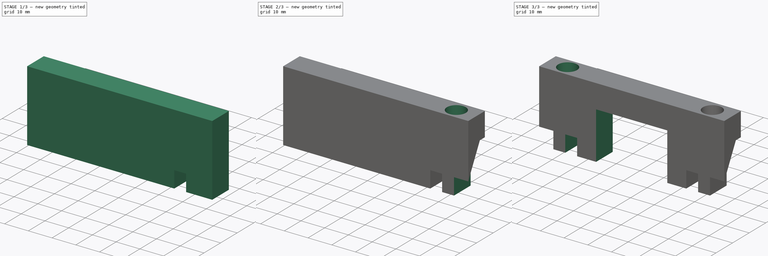
[diagram: build sequence overview — one tinted view per stage of 3, left to right]
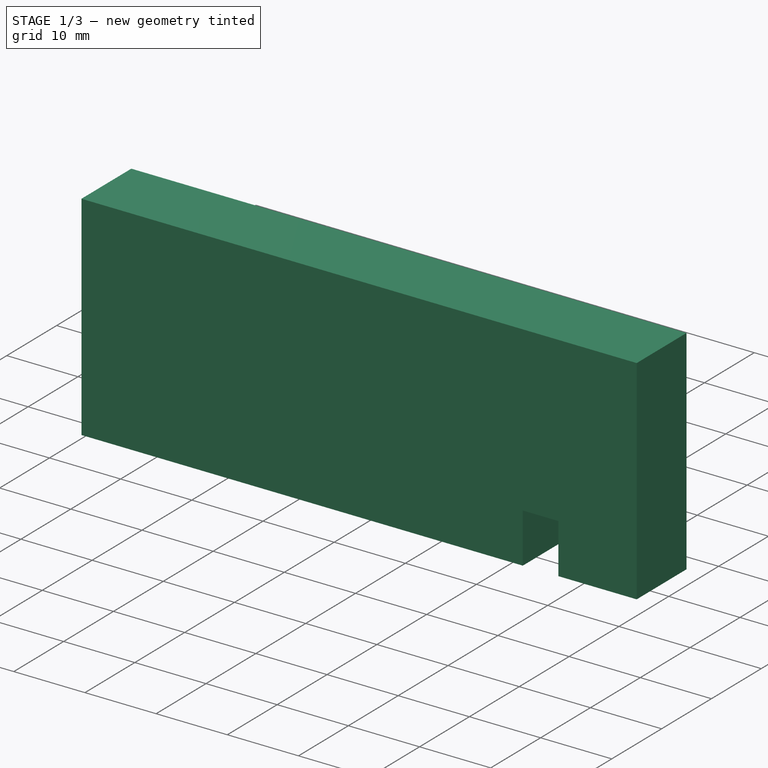
[diagram: stage 1 of 3 — iso view after this stage's code; geometry added in this stage tinted green]
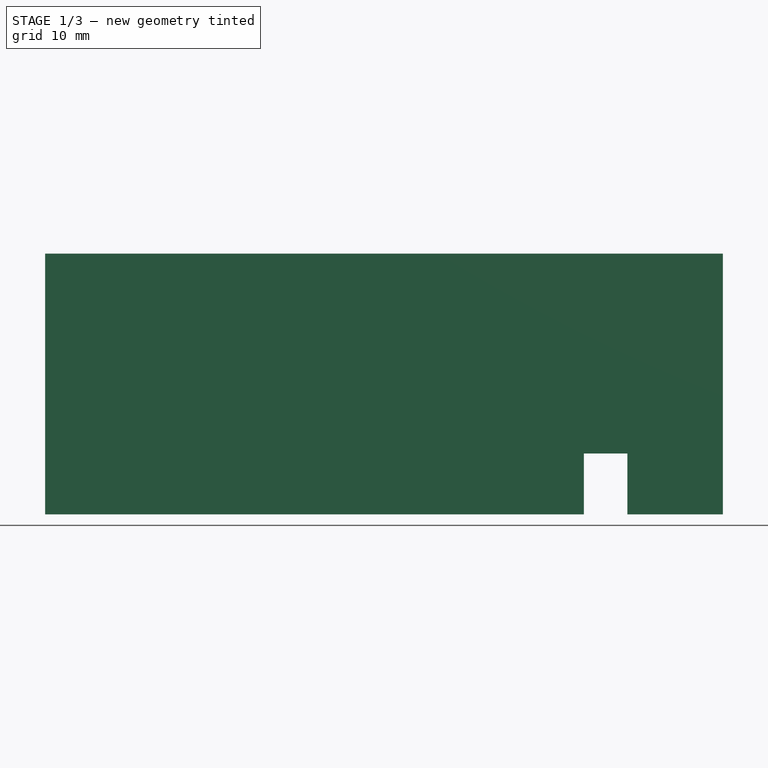
[diagram: stage 1 of 3 — front view after this stage's code; geometry added in this stage tinted green]
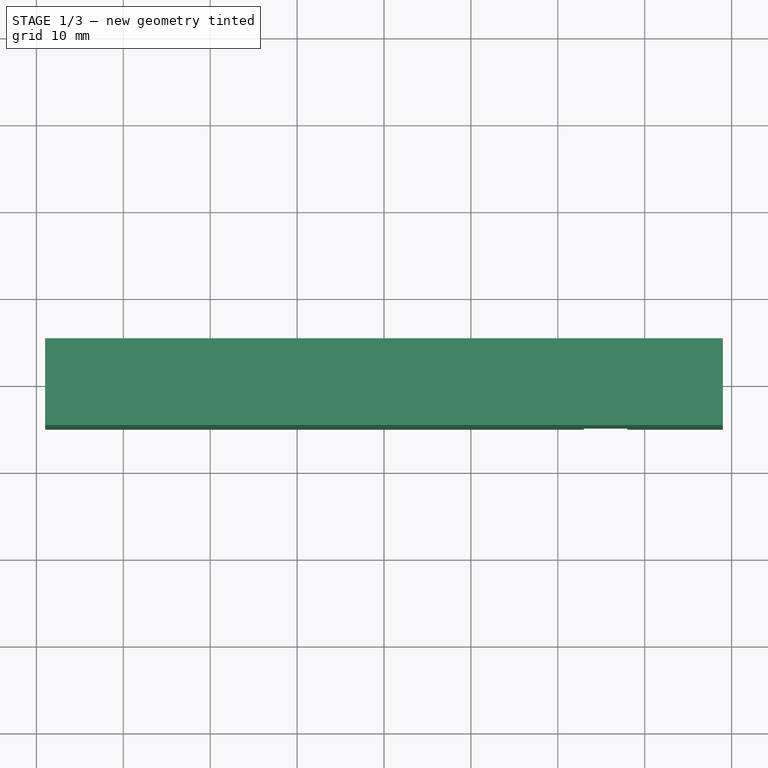
[diagram: stage 1 of 3 — top view after this stage's code; geometry added in this stage tinted green]
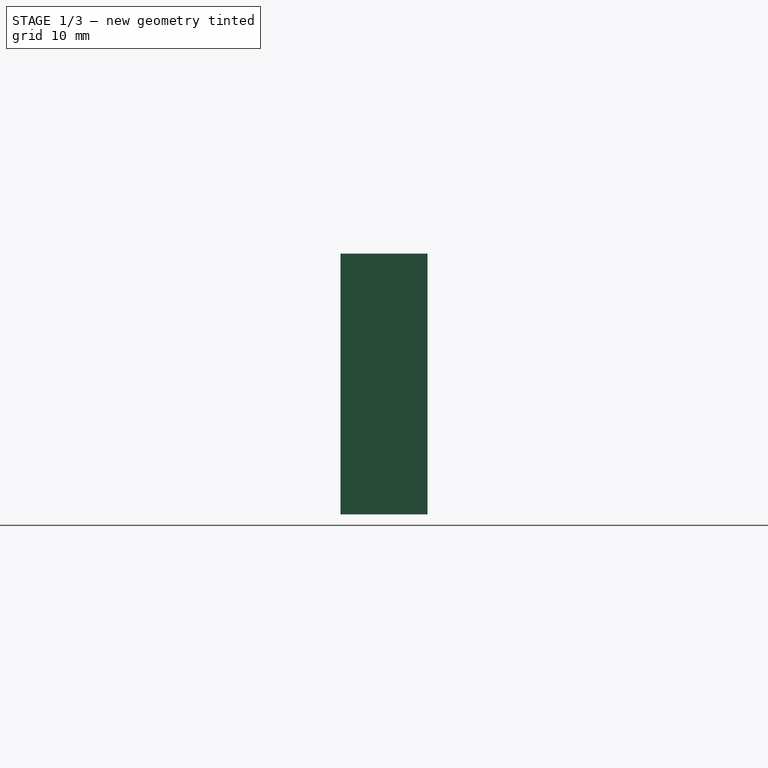
[diagram: stage 1 of 3 — right view after this stage's code; geometry added in this stage tinted green]
FCSTD DOCUMENT  (FreeCAD 0.20R29603 (Git))
Label: M365_battery_back_fix
License: All rights reserved
LicenseURL: http://en.wikipedia.org/wiki/All_rights_reserved
objects: Sketcher::SketchObject×6, PartDesign::Pocket×5, PartDesign::Plane×2, PartDesign::Pad×1, PartDesign::Mirrored×1, PartDesign::Body×1
note: 22 computed .brp shape members not serialized (recipe doc carries the construction recipe); baked Part::Feature solids carry a one-line shape summary decoded from their .brp

FEATURE [Sketcher::SketchObject] Sketch
  FullyConstrained = true
  MapMode = 5
  Support = -> [XY_Plane]
  sketch-geometry (5):
    g0: LineSegment StartX=-39 StartY=-5 StartZ=0 EndX=-39 EndY=5 EndZ=0
    g1: LineSegment StartX=-39 StartY=5 StartZ=0 EndX=39 EndY=5 EndZ=0
    g2: LineSegment StartX=39 StartY=5 StartZ=0 EndX=39 EndY=-5 EndZ=0
    g3: LineSegment StartX=39 StartY=-5 StartZ=0 EndX=-39 EndY=-5 EndZ=0
    g4: GeomPoint X=0 Y=0 Z=0
  constraints (12):
    c: Coincident(g0,g1)
    c: Coincident(g1,g2)
    c: Coincident(g2,g3)
    c: Coincident(g3,g0)
    c: Horizontal(g1)
    c: Horizontal(g3)
    c: Vertical(g0)
    c: Vertical(g2)
    c: Symmetric(g1,g0,g4)
    c: Coincident(g4,g-1)
    c: DistanceY(g2,g2) = 10
    c: DistanceX(g1,g1) = 78
FEATURE [PartDesign::Pad] Pad
  Direction = (0,0,1)
  Length = 30
  Length2 = 10
  Profile = -> Sketch
  ReferenceAxis = -> Sketch [N_Axis]
  Type = 0
FEATURE [PartDesign::Plane] DatumPlane
  AttachmentOffset = pos=(0,0,23) rot=(0,0,1;0rad)
  Length = 60.4881
  MapMode = 5
  Placement = pos=(23,-5.1e-15,5.1e-15) rot=(0.57735,0.57735,0.57735;2.0944rad)
  ResizeMode = 0
  Support = -> [YZ_Plane]
  Width = 65.4881
FEATURE [Sketcher::SketchObject] Sketch001
  ExternalGeometry = -> [Pad]
  FullyConstrained = true
  MapMode = 5
  Placement = pos=(23,-5.1e-15,5.1e-15) rot=(0.57735,0.57735,0.57735;2.0944rad)
  Support = -> [DatumPlane]
  sketch-geometry (5):
    g0: LineSegment StartX=-5 StartY=-7.4e-15 StartZ=0 EndX=5 EndY=-6.3e-15 EndZ=0
    g1: LineSegment StartX=5 StartY=-6.3e-15 StartZ=0 EndX=5 EndY=20 EndZ=0
    g2: LineSegment StartX=-5 StartY=-7.4e-15 StartZ=0 EndX=-5 EndY=7 EndZ=0
    g3: LineSegment StartX=5 StartY=20 StartZ=0 EndX=2 EndY=20 EndZ=0
    g4: LineSegment StartX=-5 StartY=7 StartZ=0 EndX=2 EndY=20 EndZ=0
  constraints (13):
    c: Coincident(g0,g-5)
    c: Coincident(g0,g-6)
    c: Coincident(g1,g0)
    c: PointOnObject(g1,g-6)
    c: DistanceY(g1,g1) = 20
    c: Coincident(g2,g0)
    c: PointOnObject(g2,g-3)
    c: DistanceY(g2,g2) = 7
    c: Coincident(g3,g1)
    c: Horizontal(g3)
    c: DistanceX(g3,g3) = 3
    c: Coincident(g4,g2)
    c: Coincident(g4,g3)
FEATURE [PartDesign::Pocket] Pocket
  BaseFeature = -> Pad
  Direction = (-1,1e-16,-1e-16)
  Length = 5
  Length2 = 5
  Profile = -> Sketch001
  ReferenceAxis = -> Sketch001 [N_Axis]
  Reversed = true
  Type = 0
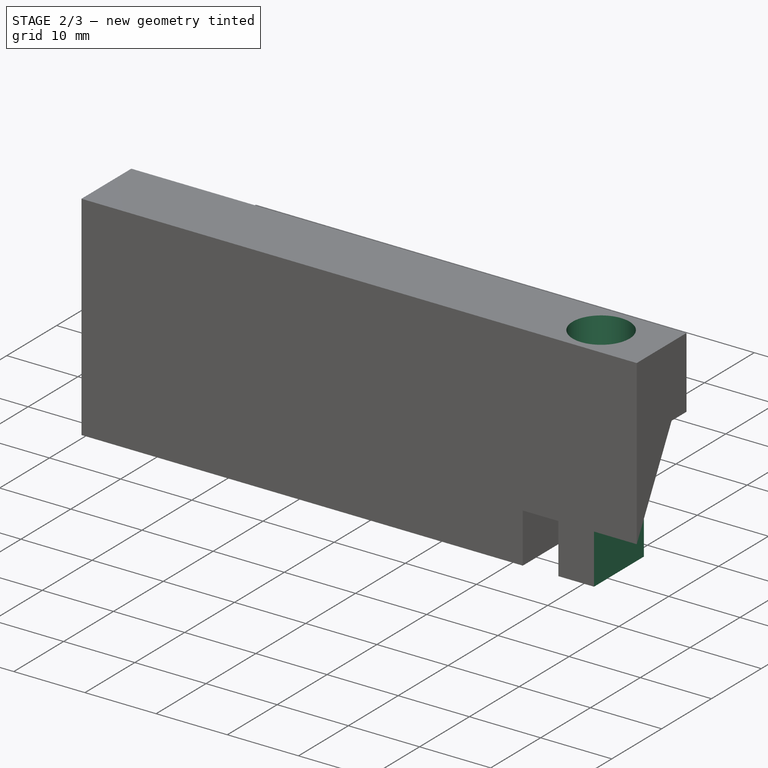
[diagram: stage 2 of 3 — iso view after this stage's code; geometry added in this stage tinted green]
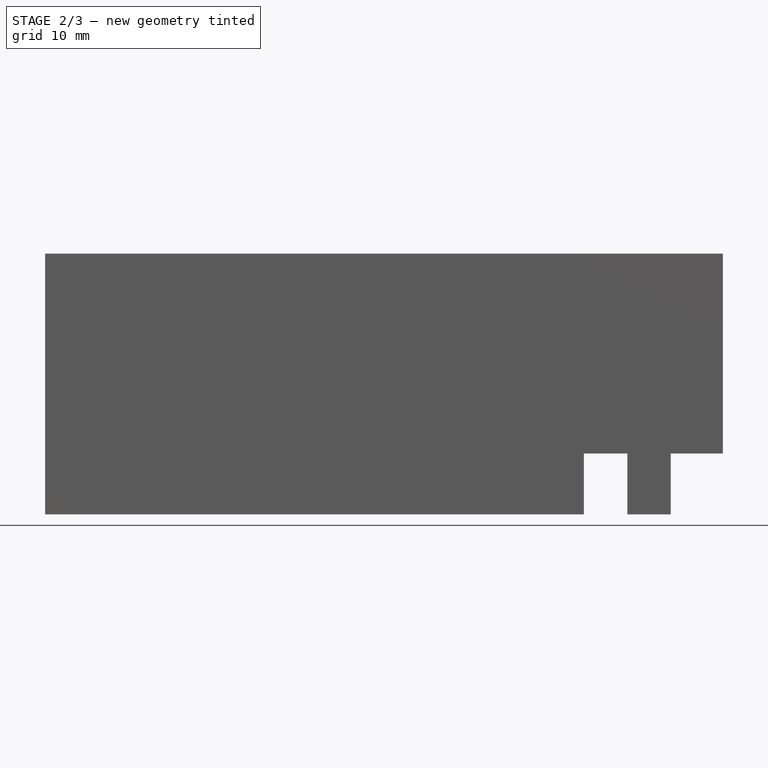
[diagram: stage 2 of 3 — front view after this stage's code; geometry added in this stage tinted green]
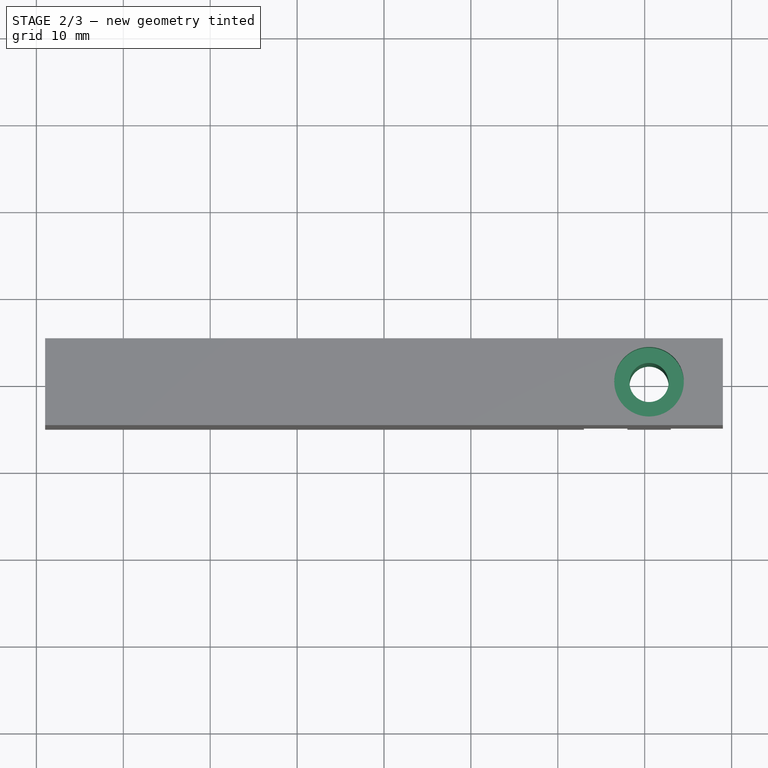
[diagram: stage 2 of 3 — top view after this stage's code; geometry added in this stage tinted green]
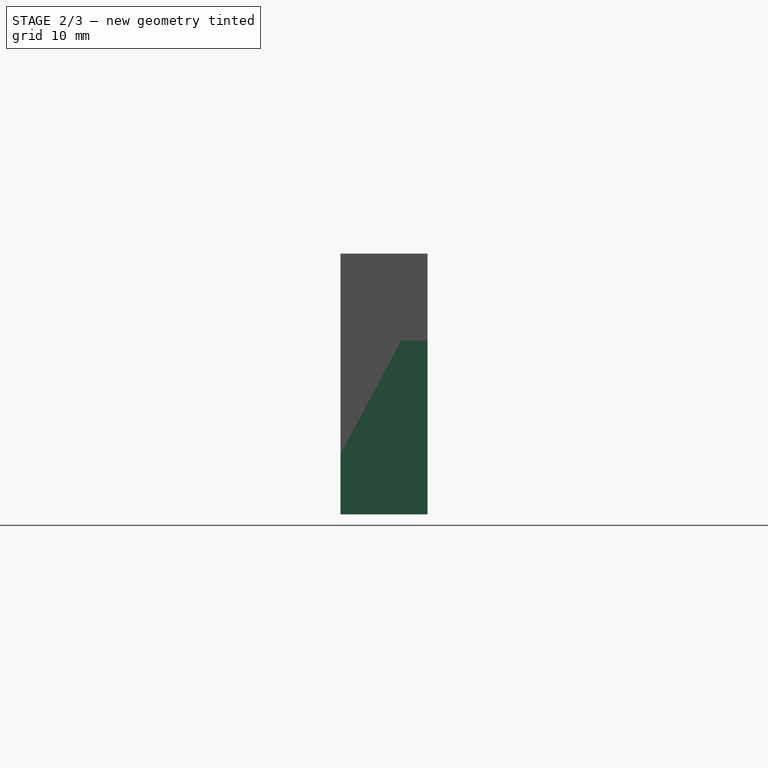
[diagram: stage 2 of 3 — right view after this stage's code; geometry added in this stage tinted green]
FEATURE [PartDesign::Plane] DatumPlane001
  AttachmentOffset = pos=(0,0,10) rot=(0,0,1;0rad)
  Length = 60.4881
  MapMode = 5
  Placement = pos=(33,3.4e-15,5.6e-15) rot=(0.57735,0.57735,0.57735;2.0944rad)
  ResizeMode = 0
  Support = -> [Pocket]
  Width = 65.4881
FEATURE [Sketcher::SketchObject] Sketch002
  ExternalGeometry = -> [Pad]
  FullyConstrained = true
  MapMode = 5
  Placement = pos=(33,3.4e-15,5.6e-15) rot=(0.57735,0.57735,0.57735;2.0944rad)
  Support = -> [DatumPlane001]
  expr: Constraints[10] = Sketch001.Constraints[10]
  expr: Constraints[4] = Sketch001.Constraints[4]
  expr: Constraints[7] = Sketch001.Constraints[7]
  sketch-geometry (5):
    g0: LineSegment StartX=-5 StartY=-7e-15 StartZ=0 EndX=5 EndY=-7e-15 EndZ=0
    g1: LineSegment StartX=5 StartY=-7e-15 StartZ=0 EndX=5 EndY=20 EndZ=0
    g2: LineSegment StartX=-5 StartY=-7e-15 StartZ=0 EndX=-5 EndY=7 EndZ=0
    g3: LineSegment StartX=5 StartY=20 StartZ=0 EndX=2 EndY=20 EndZ=0
    g4: LineSegment StartX=-5 StartY=7 StartZ=0 EndX=2 EndY=20 EndZ=0
  constraints (13):
    c: Coincident(g0,g-5)
    c: Coincident(g0,g-6)
    c: Coincident(g1,g0)
    c: PointOnObject(g1,g-6)
    c: DistanceY(g1,g1) = 20
    c: Coincident(g2,g0)
    c: PointOnObject(g2,g-3)
    c: DistanceY(g2,g2) = 7
    c: Coincident(g3,g1)
    c: Horizontal(g3)
    c: DistanceX(g3,g3) = 3
    c: Coincident(g4,g2)
    c: Coincident(g4,g3)
FEATURE [PartDesign::Pocket] Pocket001
  BaseFeature = -> Pocket
  Direction = (-1,-2e-16,-2e-16)
  Length = 5
  Length2 = 5
  Profile = -> Sketch002
  ReferenceAxis = -> Sketch002 [N_Axis]
  Reversed = true
  Type = 1
FEATURE [Sketcher::SketchObject] Sketch003
  ExternalGeometry = -> [Pocket001]
  FullyConstrained = true
  MapMode = 5
  Placement = pos=(0,0,30) rot=(0,0,1;0rad)
  Support = -> [Pocket001]
  sketch-geometry (3):
    g0: Circle CenterX=30.5 CenterY=0 CenterZ=0 NormalX=0 NormalY=0 NormalZ=1 AngleXU=0 Radius=2.25
    g1: LineSegment StartX=28 StartY=-5 StartZ=0 EndX=33 EndY=5 EndZ=0
    g2: Circle CenterX=30.5 CenterY=0 CenterZ=0 NormalX=0 NormalY=0 NormalZ=1 AngleXU=0 Radius=4
  constraints (7):
    c: PointOnObject(g0,g-1)
    c: Diameter(g0) = 4.5
    c: Coincident(g1,g-3)
    c: Coincident(g1,g-4)
    c: PointOnObject(g0,g1)
    c: Coincident(g2,g0)
    c: Diameter(g2) = 8
FEATURE [PartDesign::Pocket] Pocket002
  BaseFeature = -> Pocket001
  Direction = (0,0,-1)
  Length = 5
  Length2 = 5
  Profile = -> Sketch003
  ReferenceAxis = -> Sketch003 [N_Axis]
  Type = 1
FEATURE [Sketcher::SketchObject] Sketch004
  ExternalGeometry = -> [Pocket001]
  FullyConstrained = true
  MapMode = 5
  Placement = pos=(0,0,30) rot=(0,0,1;0rad)
  Support = -> [Pocket002]
  expr: Constraints[1] = Sketch003.Constraints[1]
  expr: Constraints[6] = Sketch003.Constraints[6]
  sketch-geometry (3):
    g0: Circle CenterX=30.5 CenterY=0 CenterZ=0 NormalX=0 NormalY=0 NormalZ=1 AngleXU=0 Radius=2.25
    g1: LineSegment StartX=28 StartY=-5 StartZ=0 EndX=33 EndY=5 EndZ=0
    g2: Circle CenterX=30.5 CenterY=0 CenterZ=0 NormalX=0 NormalY=0 NormalZ=1 AngleXU=0 Radius=4
  constraints (7):
    c: PointOnObject(g0,g-1)
    c: Diameter(g0) = 4.5
    c: Coincident(g1,g-3)
    c: Coincident(g1,g-4)
    c: PointOnObject(g0,g1)
    c: Coincident(g2,g0)
    c: Diameter(g2) = 8
FEATURE [PartDesign::Pocket] Pocket003
  BaseFeature = -> Pocket002
  Direction = (0,0,-1)
  Length = 5
  Length2 = 5
  Profile = -> Sketch004
  ReferenceAxis = -> Sketch004 [N_Axis]
  Type = 0
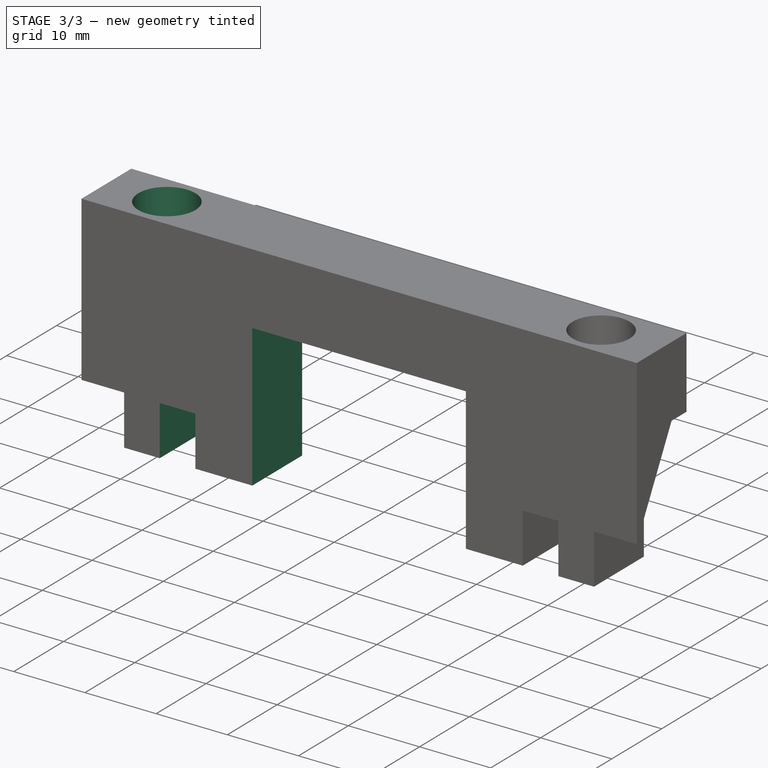
[diagram: stage 3 of 3 — iso view after this stage's code; geometry added in this stage tinted green]
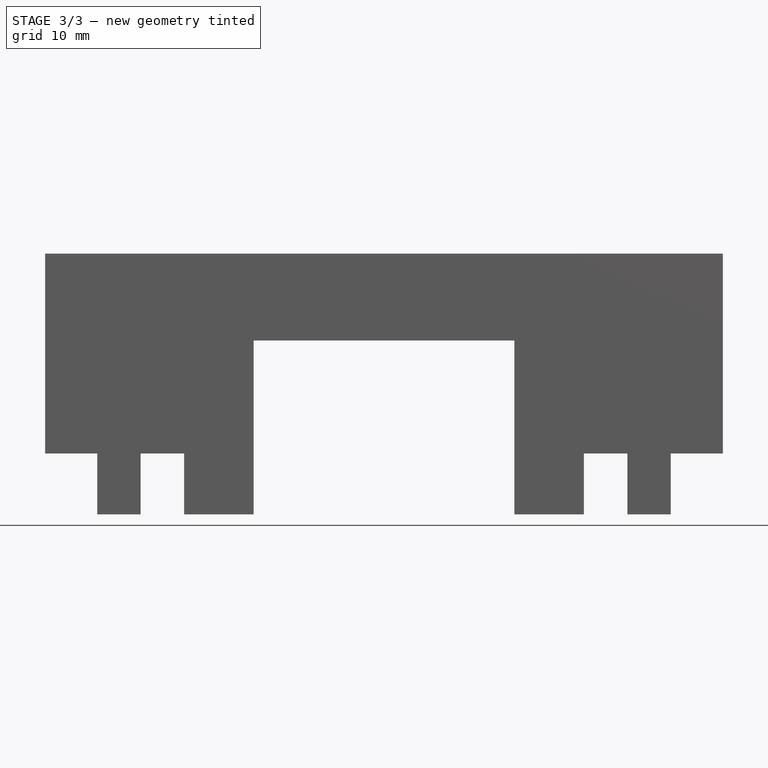
[diagram: stage 3 of 3 — front view after this stage's code; geometry added in this stage tinted green]
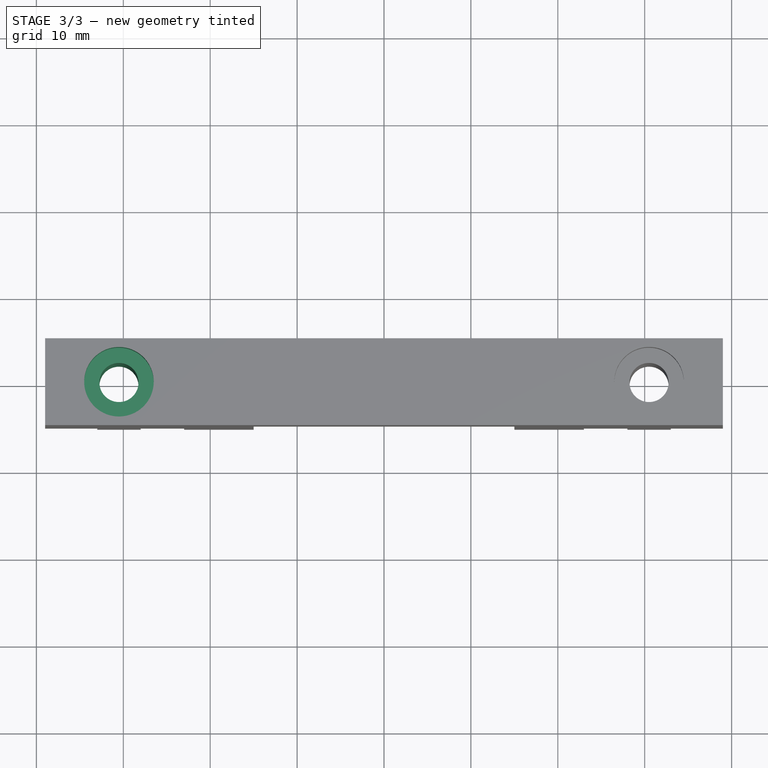
[diagram: stage 3 of 3 — top view after this stage's code; geometry added in this stage tinted green]
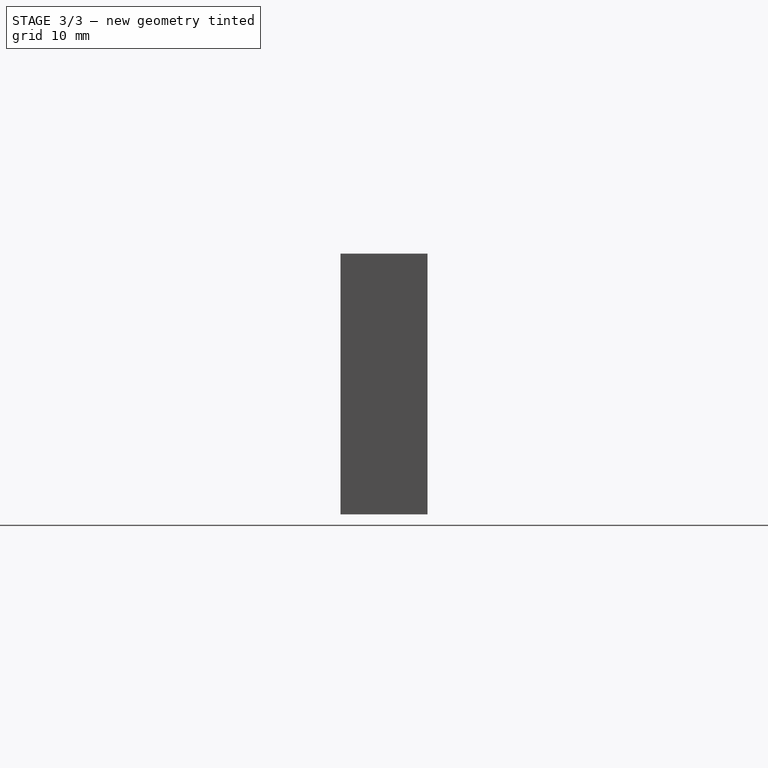
[diagram: stage 3 of 3 — right view after this stage's code; geometry added in this stage tinted green]
FEATURE [PartDesign::Mirrored] Mirrored
  BaseFeature = -> Pocket003
  MirrorPlane = -> YZ_Plane
  Originals = -> [Pocket003,Pocket002,Pocket001,Pocket]
FEATURE [Sketcher::SketchObject] Sketch005
  FullyConstrained = true
  MapMode = 5
  Placement = pos=(0,0,0) rot=(1,0,0;3.14159rad)
  Support = -> [Mirrored]
  sketch-geometry (5):
    g0: LineSegment StartX=-15 StartY=-5 StartZ=0 EndX=-15 EndY=5 EndZ=0
    g1: LineSegment StartX=-15 StartY=5 StartZ=0 EndX=15 EndY=5 EndZ=0
    g2: LineSegment StartX=15 StartY=5 StartZ=0 EndX=15 EndY=-5 EndZ=0
    g3: LineSegment StartX=15 StartY=-5 StartZ=0 EndX=-15 EndY=-5 EndZ=0
    g4: GeomPoint X=0 Y=0 Z=0
  constraints (12):
    c: Coincident(g0,g1)
    c: Coincident(g1,g2)
    c: Coincident(g2,g3)
    c: Coincident(g3,g0)
    c: Horizontal(g1)
    c: Horizontal(g3)
    c: Vertical(g0)
    c: Vertical(g2)
    c: Symmetric(g1,g0,g4)
    c: Coincident(g4,g-1)
    c: DistanceY(g2,g2) = 10
    c: DistanceX(g1,g1) = 30
FEATURE [PartDesign::Pocket] Pocket004
  BaseFeature = -> Mirrored
  Direction = (0,0,1)
  Length = 20
  Length2 = 5
  Profile = -> Sketch005
  ReferenceAxis = -> Sketch005 [N_Axis]
  Type = 0
FEATURE [PartDesign::Body] Body
  Group = -> [Sketch,Pad,DatumPlane,Sketch001,Pocket,DatumPlane001,Sketch002,Pocket001,Sketch003,Pocket002,Sketch004,Pocket003,Mirrored,Sketch005,Pocket004]
  Origin = -> Origin
  Tip = -> Pocket004
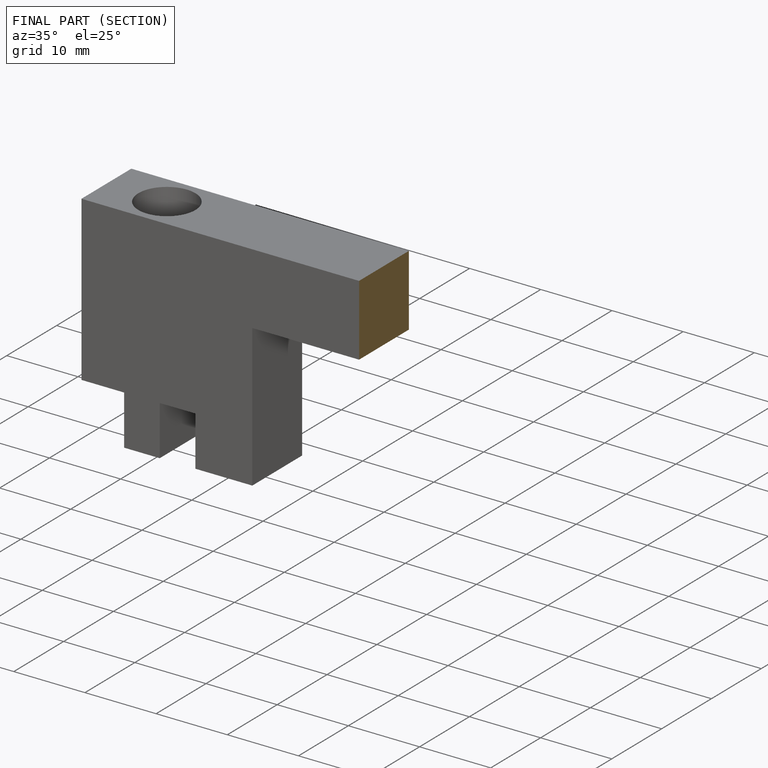
[diagram: finished part — half-section view (interior)]
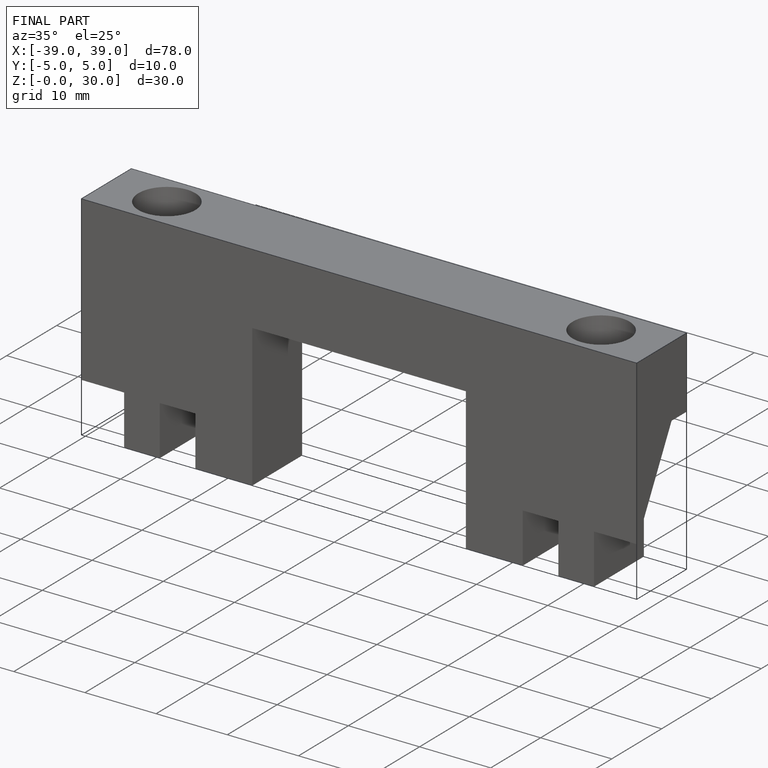
[diagram: finished part — iso view with bounding-box wireframe]
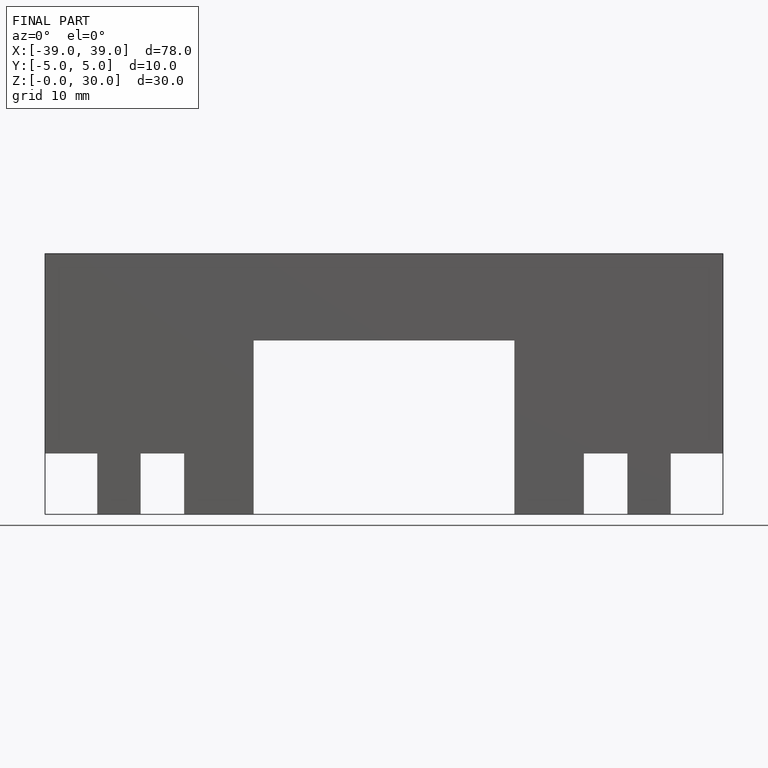
[diagram: finished part — front view with bounding-box wireframe]
